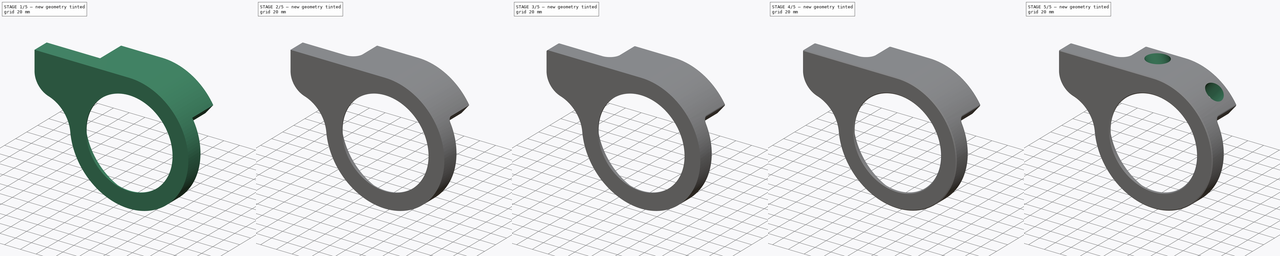
[diagram: build sequence overview — one tinted view per stage of 5, left to right]
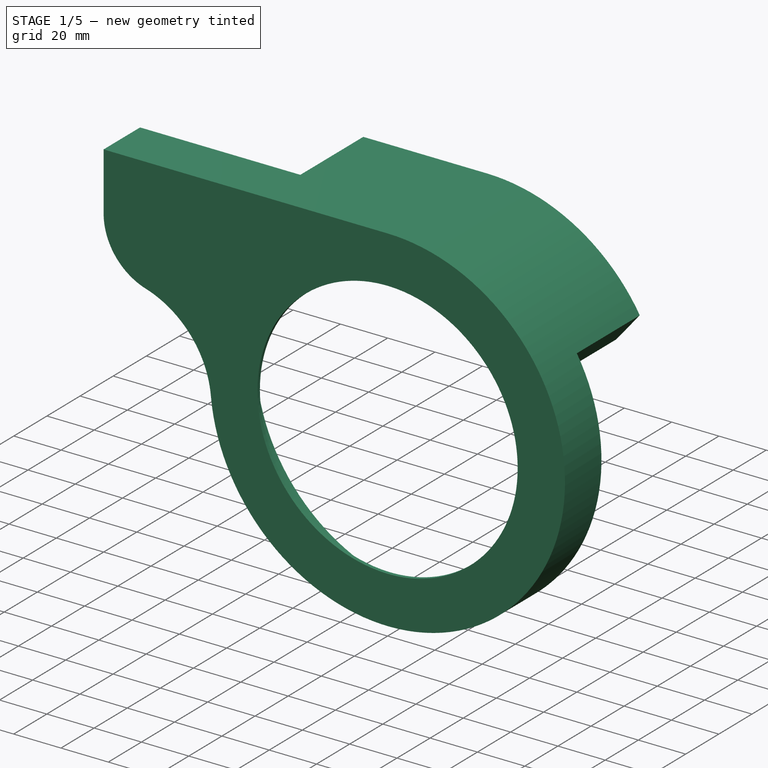
[diagram: stage 1 of 5 — iso view after this stage's code; geometry added in this stage tinted green]
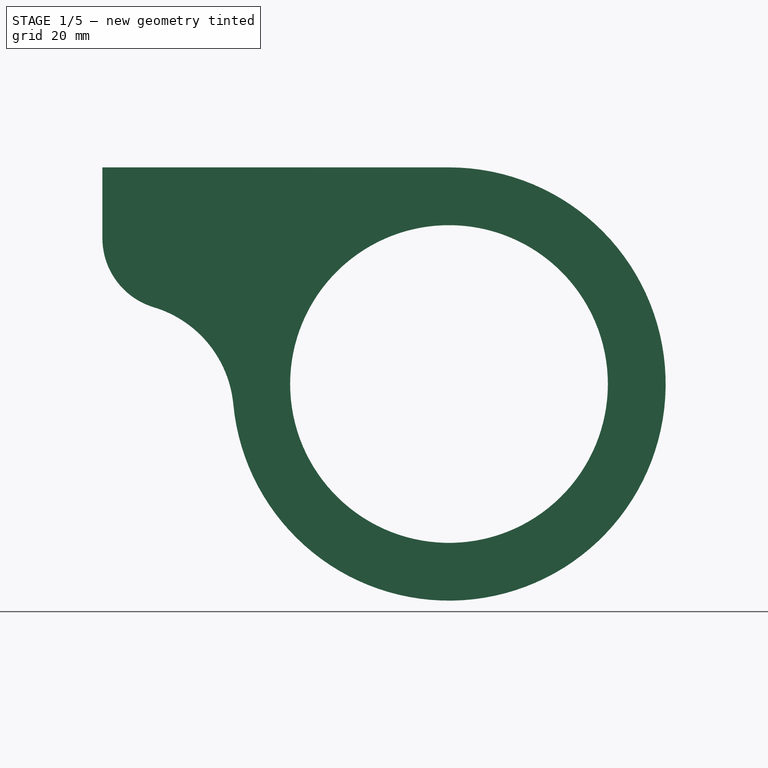
[diagram: stage 1 of 5 — front view after this stage's code; geometry added in this stage tinted green]
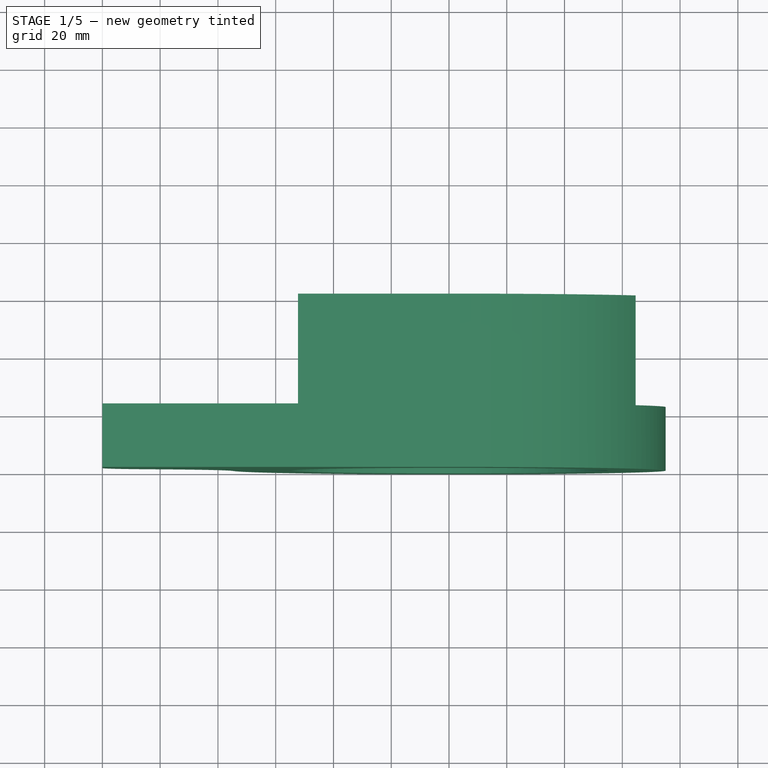
[diagram: stage 1 of 5 — top view after this stage's code; geometry added in this stage tinted green]
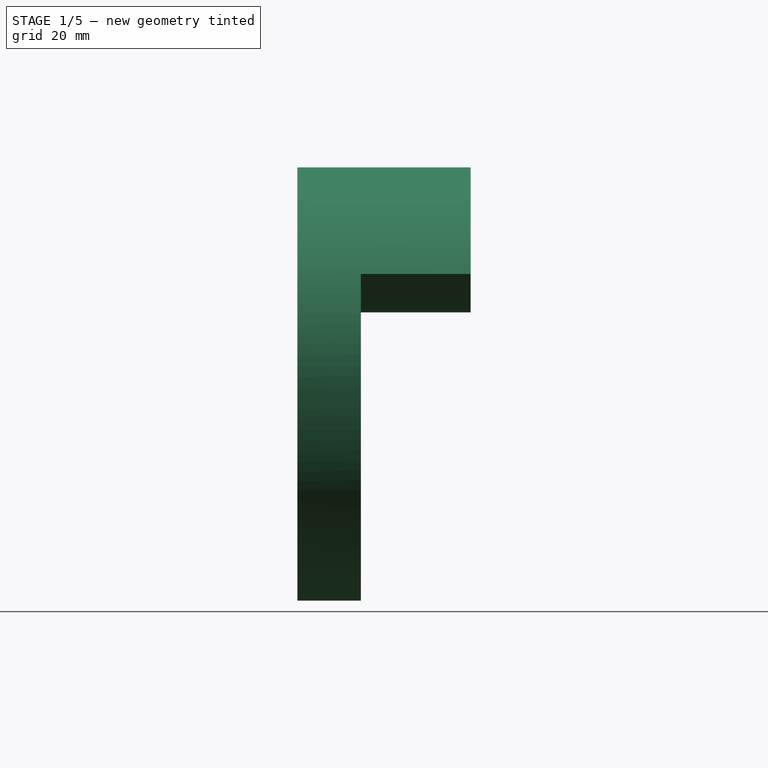
[diagram: stage 1 of 5 — right view after this stage's code; geometry added in this stage tinted green]
FCSTD DOCUMENT  (FreeCAD 0.19R)
Label: BottomWhiteBikeIntegral
License: All rights reserved
LicenseURL: http://en.wikipedia.org/wiki/All_rights_reserved
objects: Sketcher::SketchObject×7, PartDesign::Pocket×6, PartDesign::Fillet×5, PartDesign::Chamfer×4, Part::Cylinder×2, PartDesign::Pad×1, Part::MultiFuse×1, PartDesign::Body×1, Part::Cut×1
note: 44 computed .brp shape members not serialized (recipe doc carries the construction recipe); baked Part::Feature solids carry a one-line shape summary decoded from their .brp

FEATURE [Sketcher::SketchObject] Sketch
  FullyConstrained = false
  MapMode = 5
  Placement = pos=(0,0,0) rot=(1,0,0;1.5708rad)
  Support = -> [XZ_Plane]
  sketch-geometry (11):
    g0: LineSegment StartX=0 StartY=0 StartZ=0 EndX=112.706 EndY=65.0706 EndZ=0
    g1: LineSegment StartX=0 StartY=0 StartZ=0 EndX=7.3e-15 EndY=119.149 EndZ=0
    g2: LineSegment StartX=2.14e-14 StartY=70 StartZ=0 EndX=-199.884 EndY=70 EndZ=0
    g3: Circle CenterX=0 CenterY=0 CenterZ=0 NormalX=0 NormalY=0 NormalZ=1 AngleXU=0 Radius=45
    g4: ArcOfCircle CenterX=0 CenterY=0 CenterZ=0 NormalX=0 NormalY=0 NormalZ=1 AngleXU=0 Radius=70 StartAngle=3.5224 EndAngle=7.85398
    g5: LineSegment StartX=-120 StartY=75 StartZ=0 EndX=2.84e-14 EndY=75 EndZ=0
    g6: ArcOfCircle CenterX=0 CenterY=0 CenterZ=0 NormalX=0 NormalY=0 NormalZ=1 AngleXU=0 Radius=75 StartAngle=3.23571 EndAngle=7.85398
    g7: LineSegment StartX=-120 StartY=75 StartZ=0 EndX=-120 EndY=50.5061 EndZ=0
    g8: ArcOfCircle CenterX=-95 CenterY=50.5061 CenterZ=0 NormalX=0 NormalY=0 NormalZ=1 AngleXU=0 Radius=25 StartAngle=3.14159 EndAngle=4.4201
    g9: Circle CenterX=0 CenterY=0 CenterZ=0 NormalX=0 NormalY=0 NormalZ=1 AngleXU=0 Radius=55
    g10: ArcOfCircle CenterX=-113.419 CenterY=-10.7061 CenterZ=0 NormalX=0 NormalY=0 NormalZ=1 AngleXU=0 Radius=38.9235 StartAngle=0.0941155 EndAngle=1.27851
  constraints (25):
    c: Coincident(g0,g-1)
    c: Coincident(g1,g-1)
    c: Angle(g1) = 1.5708
    c: Angle(g0,g1) = 1.0472
    c: PointOnObject(g2,g1)
    c: Angle(g2) = 3.14159
    c: DistanceY(g2) = 70
    c: Coincident(g3,g-1)
    c: Coincident(g4,g-1)
    c: Diameter(g3) = 90
    c: Coincident(g4,g2)
    c: PointOnObject(g5,g1)
    c: Horizontal(g5)
    c: Coincident(g6,g-1)
    c: Coincident(g6,g5)
    c: Coincident(g5,g7)
    c: Vertical(g7)
    c: Tangent(g8,g7) = -1.5708
    c: Diameter(g6) = 150
    c: Distance(g5) = 120
    c: Diameter(g8) = 50
    c: Coincident(g9,g6)
    c: Diameter(g9) = 110
    c: Tangent(g10,g6) = 1.5708
    c: Tangent(g10,g8) = 1.5708
FEATURE [PartDesign::Pad] Pad
  Direction = (1,1,1)
  Length = 40
  Length2 = 20
  Placement = pos=(0,0,0) rot=(1,0,0;1.5708rad)
  Profile = -> Sketch
  Type = 4
FEATURE [Sketcher::SketchObject] Sketch001
  FullyConstrained = false
  MapMode = 5
  Placement = pos=(0,20,-8.8e-15) rot=(-1,0,0;1.5708rad)
  Support = -> [Pad]
  sketch-geometry (14):
    g0: GeomPoint X=0 Y=0 Z=0
    g1: LineSegment StartX=0 StartY=0 StartZ=0 EndX=101.779 EndY=-121.295 EndZ=0
    g2: LineSegment StartX=54.9288 StartY=-26.5684 StartZ=0 EndX=75.9423 EndY=-51.6114 EndZ=0
    g3: ArcOfCircle CenterX=0 CenterY=0 CenterZ=0 NormalX=0 NormalY=0 NormalZ=1 AngleXU=0 Radius=91.8204 StartAngle=5.68627 EndAngle=9.42478
    g4: LineSegment StartX=-211.759 StartY=-107.924 StartZ=0 EndX=-91.8204 EndY=2.84e-14 EndZ=0
    g5: LineSegment StartX=43.6212 StartY=-30.5051 StartZ=0 EndX=-31.6726 EndY=-44.3314 EndZ=0
    g6: LineSegment StartX=-42.2439 StartY=-45.8964 StartZ=0 EndX=-52.4011 EndY=-75.3951 EndZ=0
    g7: LineSegment StartX=0 StartY=0 StartZ=0 EndX=-69.9978 EndY=-203.289 EndZ=0
    g8: ArcOfCircle CenterX=51.1344 CenterY=-29.7522 CenterZ=0 NormalX=0 NormalY=0 NormalZ=1 AngleXU=0 Radius=4.95311 StartAngle=0.698132 EndAngle=2.38613
    g9: LineSegment StartX=47.5288 StartY=-26.3563 StartZ=0 EndX=43.6212 EndY=-30.5051 EndZ=0
    g10: LineSegment StartX=-52.4011 StartY=-75.3951 StartZ=0 EndX=-16.4761 EndY=-75.3951 EndZ=0
    g11: LineSegment StartX=-16.4761 StartY=-75.3951 StartZ=0 EndX=-30.9733 EndY=-107.924 EndZ=0
    g12: LineSegment StartX=-30.9733 StartY=-107.924 StartZ=0 EndX=-211.759 EndY=-107.924 EndZ=0
    g13: ArcOfCircle CenterX=-35.7204 CenterY=-53.4756 CenterZ=0 NormalX=0 NormalY=0 NormalZ=1 AngleXU=0 Radius=10 StartAngle=1.15406 EndAngle=2.28148
  constraints (24):
    c: Coincident(g1,g-1)
    c: Angle(g1,g-2) = 2.44346
    c: Coincident(g3,g-1)
    c: PointOnObject(g3,g-1)
    c: Coincident(g4,g3)
    c: Distance(g2,g1) = 25
    c: Parallel(g2,g1)
    c: Coincident(g7,g3)
    c: Angle(g7,g1) = 1.02974
    c: Parallel(g7,g6)
    c: Distance(g6,g7) = 25
    c: Tangent(g8,g2) = 1.5708
    c: Tangent(g9,g8) = -1.5708
    c: Coincident(g5,g9)
    c: Horizontal(g10)
    c: Coincident(g11,g10)
    c: Coincident(g12,g11)
    c: Coincident(g12,g4)
    c: Horizontal(g12)
    c: Coincident(g6,g13)
    c: Radius(g13) = 10
    c: Coincident(g13,g5)
    c: Coincident(g2,g3)
    c: Coincident(g10,g6)
FEATURE [PartDesign::Pocket] Pocket  label="FirstPocket-trim"
  BaseFeature = -> Pad
  Length = 38
  Length2 = 100
  Placement = pos=(0,0,0) rot=(1,0,0;1.5708rad)
  Profile = -> Sketch001
  Type = 0
FEATURE [Sketcher::SketchObject] Sketch003
  FullyConstrained = false
  MapMode = 5
  Placement = pos=(0,-18,9.8e-15) rot=(-1,0,0;1.5708rad)
  Support = -> [Pocket]
  sketch-geometry (5):
    g0: ArcOfCircle CenterX=0 CenterY=0 CenterZ=0 NormalX=0 NormalY=0 NormalZ=1 AngleXU=0 Radius=71 StartAngle=4.71239 EndAngle=9.33476
    g1: LineSegment StartX=-114.486 StartY=-47.5911 StartZ=0 EndX=-114.486 EndY=-71 EndZ=0
    g2: LineSegment StartX=-114.486 StartY=-71 StartZ=0 EndX=-1.42e-14 EndY=-71 EndZ=0
    g3: ArcOfCircle CenterX=-114.486 CenterY=10.3335 CenterZ=0 NormalX=0 NormalY=0 NormalZ=1 AngleXU=0 Radius=43.9514 StartAngle=4.985 EndAngle=6.19317
    g4: ArcOfCircle CenterX=-98.2918 CenterY=-47.5911 CenterZ=0 NormalX=0 NormalY=0 NormalZ=1 AngleXU=0 Radius=16.1943 StartAngle=1.84341 EndAngle=3.14159
  constraints (11):
    c: Coincident(g0,g-1)
    c: PointOnObject(g0,g-2)
    c: Diameter(g0) = 142
    c: Vertical(g1)
    c: Coincident(g1,g2)
    c: Coincident(g2,g0)
    c: Horizontal(g2)
    c: Perpendicular(g3,g1)
    c: Tangent(g3,g0) = 1.5708
    c: Tangent(g4,g1) = -1.5708
    c: Tangent(g4,g3) = 1.5708
FEATURE [PartDesign::Pocket] Pocket001  label="2ndPocket-thk"
  BaseFeature = -> Pocket
  Length = 20.5
  Length2 = 0
  Placement = pos=(0,0,0) rot=(1,0,0;1.5708rad)
  Profile = -> Sketch003
  Type = 4
FEATURE [Sketcher::SketchObject] Sketch004
  FullyConstrained = true
  MapMode = 5
  Placement = pos=(0,-38,4.2e-14) rot=(0,0.707107,0.707107;3.14159rad)
  sketch-geometry (2):
    g0: Circle CenterX=0 CenterY=0 CenterZ=0 NormalX=0 NormalY=0 NormalZ=1 AngleXU=0 Radius=67.5
    g1: Circle CenterX=0 CenterY=0 CenterZ=0 NormalX=0 NormalY=0 NormalZ=1 AngleXU=0 Radius=58
  constraints (4):
    c: Coincident(g0,g-1)
    c: Coincident(g1,g0)
    c: Diameter(g1) = 116
    c: Diameter(g0) = 135
FEATURE [PartDesign::Pocket] Pocket002  label="ChainGroove"
  BaseFeature = -> Pocket001
  Length = 0.4
  Length2 = 100
  Placement = pos=(0,0,0) rot=(1,0,0;1.5708rad)
  Profile = -> Sketch004
  Type = 0
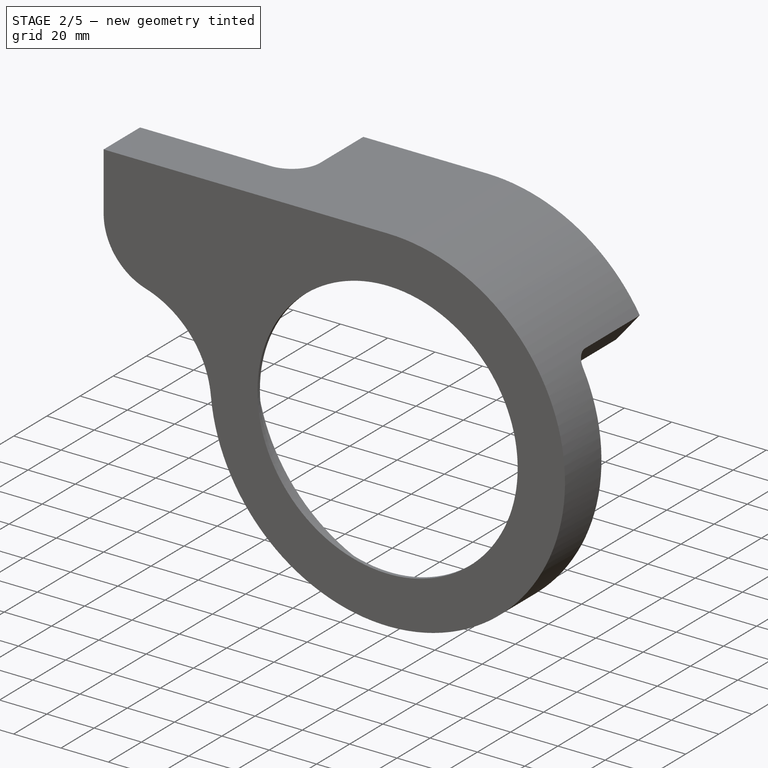
[diagram: stage 2 of 5 — iso view after this stage's code; geometry added in this stage tinted green]
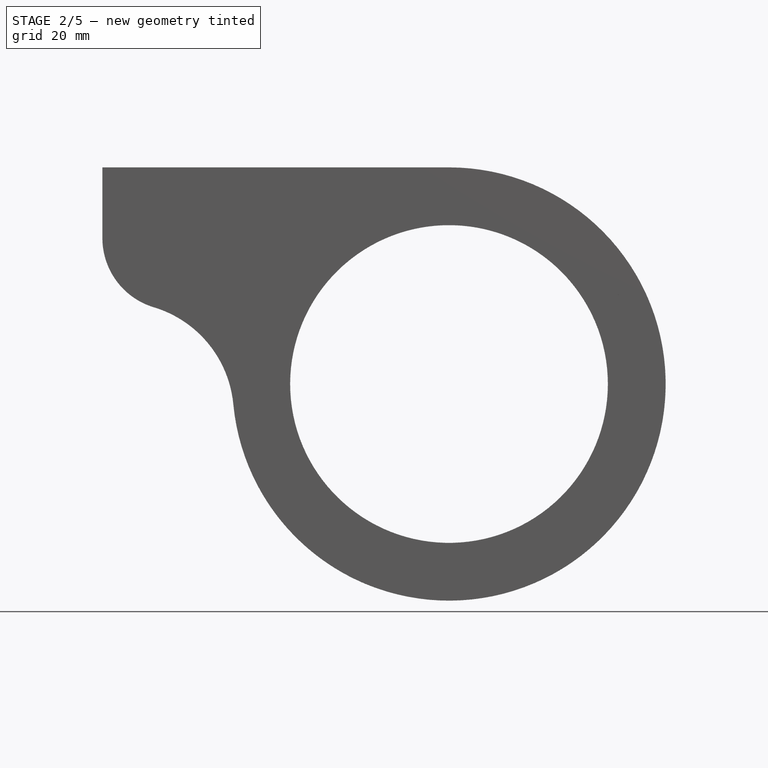
[diagram: stage 2 of 5 — front view after this stage's code; geometry added in this stage tinted green]
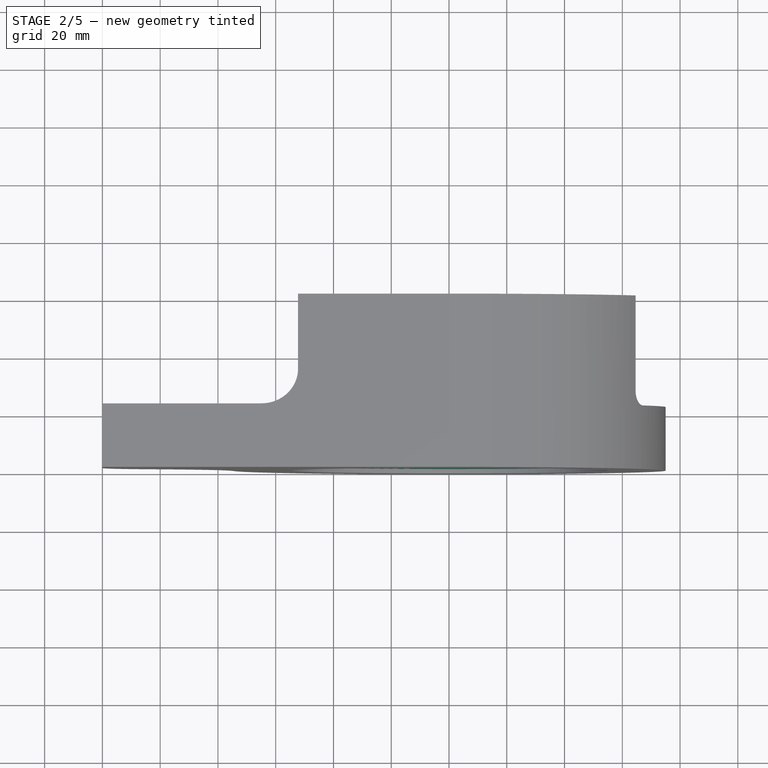
[diagram: stage 2 of 5 — top view after this stage's code; geometry added in this stage tinted green]
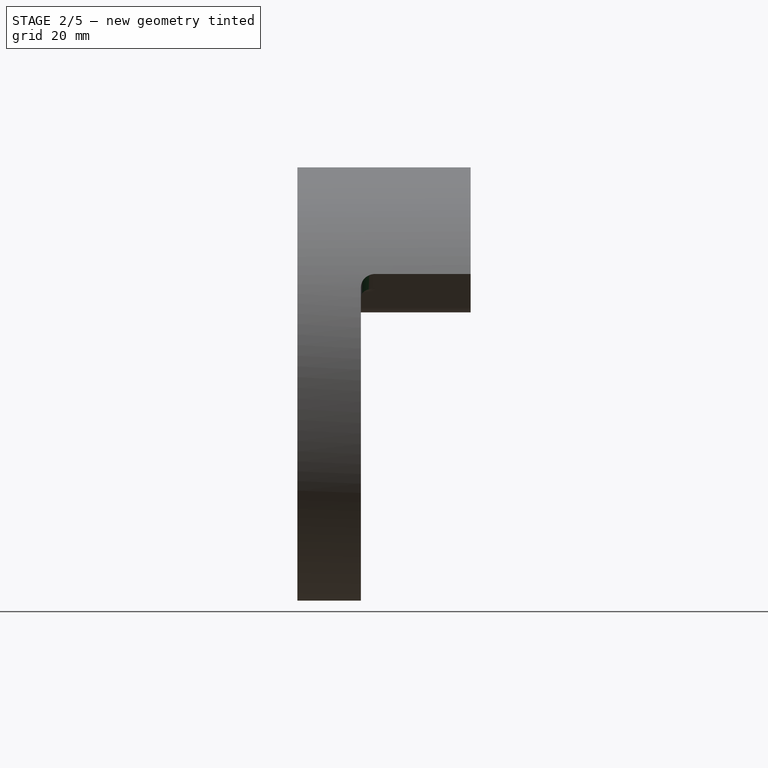
[diagram: stage 2 of 5 — right view after this stage's code; geometry added in this stage tinted green]
FEATURE [Sketcher::SketchObject] Sketch006
  FullyConstrained = false
  MapMode = 5
  Placement = pos=(0,20,-1.77e-14) rot=(-1,0,0;1.5708rad)
  sketch-geometry (4):
    g0: Circle CenterX=-39.8919 CenterY=-60.6956 CenterZ=0 NormalX=0 NormalY=0 NormalZ=1 AngleXU=0 Radius=1.45
    g1: Circle CenterX=0.518637 CenterY=-64.7366 CenterZ=0 NormalX=0 NormalY=0 NormalZ=1 AngleXU=0 Radius=1.45
    g2: Circle CenterX=26.4007 CenterY=-58.9637 CenterZ=0 NormalX=0 NormalY=0 NormalZ=1 AngleXU=0 Radius=1.45
    g3: Circle CenterX=54.207 CenterY=-34.7174 CenterZ=0 NormalX=0 NormalY=0 NormalZ=1 AngleXU=0 Radius=1.45
  constraints (4):
    c: Diameter(g0) = 2.9
    c: Equal(g0,g1)
    c: Equal(g0,g2)
    c: Equal(g0,g3)
FEATURE [Sketcher::SketchObject] Sketch007
  FullyConstrained = false
  MapMode = 5
  Placement = pos=(0,20,-1.99e-14) rot=(-1,0,0;1.5708rad)
  sketch-geometry (4):
    g0: Circle CenterX=-39.9046 CenterY=-60.6617 CenterZ=0 NormalX=0 NormalY=0 NormalZ=1 AngleXU=0 Radius=2
    g1: Circle CenterX=0.50043 CenterY=-64.7556 CenterZ=0 NormalX=0 NormalY=0 NormalZ=1 AngleXU=0 Radius=2
    g2: Circle CenterX=26.3703 CenterY=-58.9325 CenterZ=0 NormalX=0 NormalY=0 NormalZ=1 AngleXU=0 Radius=2
    g3: Circle CenterX=54.2248 CenterY=-34.7424 CenterZ=0 NormalX=0 NormalY=0 NormalZ=1 AngleXU=0 Radius=2
  constraints (4):
    c: Diameter(g0) = 4
    c: Equal(g0,g1)
    c: Equal(g0,g2)
    c: Equal(g0,g3)
FEATURE [Sketcher::SketchObject] Sketch008
  FullyConstrained = false
  MapMode = 5
  Placement = pos=(-120,0,0) rot=(0.707107,0,-0.707107;3.14159rad)
  Support = -> [Pocket001]
  sketch-geometry (10):
    g0: LineSegment StartX=-66.716 StartY=37.5 StartZ=0 EndX=-46.2026 EndY=37.5 EndZ=0
    g1: LineSegment StartX=-46.2026 StartY=37.5 StartZ=0 EndX=-46.2026 EndY=21.5 EndZ=0
    g2: LineSegment StartX=-46.2026 StartY=21.5 StartZ=0 EndX=-69.9987 EndY=21.5 EndZ=0
    g3: LineSegment StartX=-69.9987 StartY=21.5 StartZ=0 EndX=-69.9987 EndY=34.2173 EndZ=0
    g4: LineSegment StartX=68.1181 StartY=37.5 StartZ=0 EndX=34.4148 EndY=37.5 EndZ=0
    g5: LineSegment StartX=34.4148 StartY=37.5 StartZ=0 EndX=34.4148 EndY=21.5 EndZ=0
    g6: LineSegment StartX=34.4148 StartY=21.5 StartZ=0 EndX=69.9278 EndY=21.5 EndZ=0
    g7: LineSegment StartX=69.9278 StartY=21.5 StartZ=0 EndX=69.9278 EndY=35.6903 EndZ=0
    g8: ArcOfCircle CenterX=-66.716 CenterY=34.2173 CenterZ=0 NormalX=0 NormalY=0 NormalZ=1 AngleXU=0 Radius=3.28275 StartAngle=1.5708 EndAngle=3.14159
    g9: ArcOfCircle CenterX=68.1181 CenterY=35.6903 CenterZ=0 NormalX=0 NormalY=0 NormalZ=1 AngleXU=0 Radius=1.80973 StartAngle=-1.15e-14 EndAngle=1.5708
  constraints (22):
    c: Coincident(g0,g1)
    c: Coincident(g1,g2)
    c: Coincident(g2,g3)
    c: Horizontal(g0)
    c: Horizontal(g2)
    c: Vertical(g1)
    c: Vertical(g3)
    c: DistanceY(g0) = 37.5
    c: Coincident(g4,g5)
    c: Coincident(g5,g6)
    c: Coincident(g6,g7)
    c: Horizontal(g4)
    c: Horizontal(g6)
    c: Vertical(g5)
    c: Vertical(g7)
    c: DistanceY(g4,g0) = 0
    c: Distance(g1) = 16
    c: Tangent(g3,g8) = 1.5708
    c: Tangent(g0,g8) = 1.5708
    c: Tangent(g4,g9) = -1.5708
    c: Tangent(g7,g9) = -1.5708
    c: Equal(g5,g1)
FEATURE [PartDesign::Chamfer] Chamfer
  Angle = 45
  Base = -> Pocket002 [Edge39]
  BaseFeature = -> Pocket002
  ChamferType = 0
  FlipDirection = false
  Placement = pos=(0,0,0) rot=(1,0,0;1.5708rad)
  Size = 2
  Size2 = 1
  SupportTransform = false
FEATURE [PartDesign::Pocket] Pocket003
  BaseFeature = -> Chamfer
  Length = 106
  Length2 = 100
  Placement = pos=(0,0,0) rot=(1,0,0;1.5708rad)
  Profile = -> Sketch008
  Type = 0
FEATURE [PartDesign::Fillet] Fillet
  Base = -> Pocket003 [Edge22]
  BaseFeature = -> Pocket003
  Placement = pos=(0,0,0) rot=(1,0,0;1.5708rad)
  Radius = 12
  SupportTransform = false
FEATURE [PartDesign::Fillet] Fillet001
  Base = -> Fillet [Edge17]
  BaseFeature = -> Fillet
  Placement = pos=(0,0,0) rot=(1,0,0;1.5708rad)
  Radius = 5
  SupportTransform = false
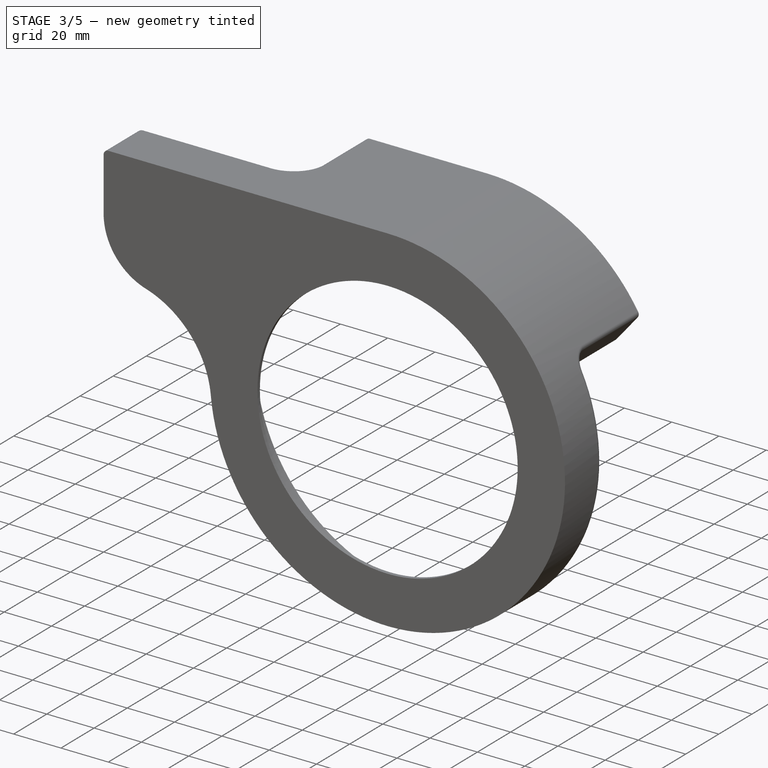
[diagram: stage 3 of 5 — iso view after this stage's code; geometry added in this stage tinted green]
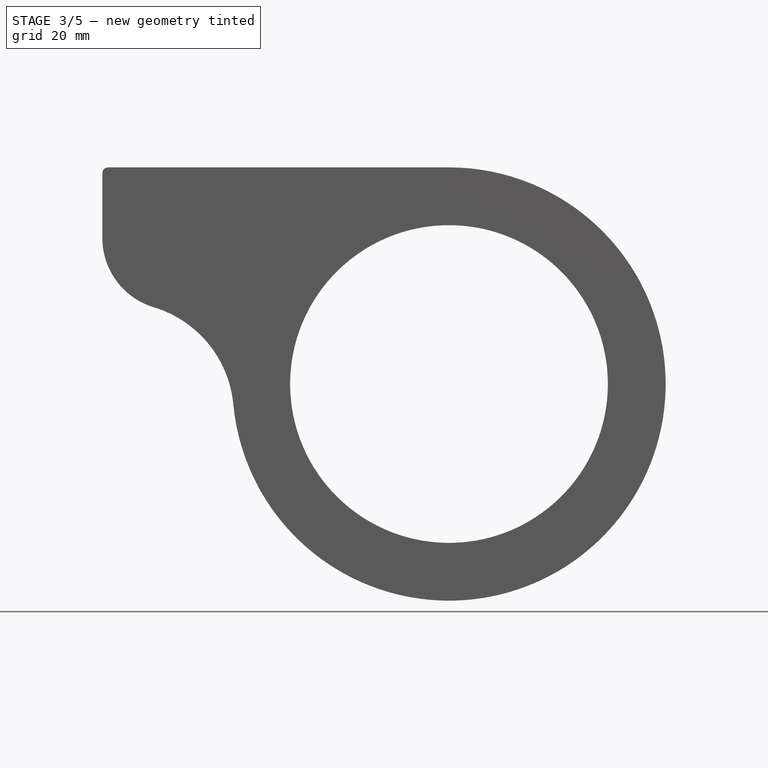
[diagram: stage 3 of 5 — front view after this stage's code; geometry added in this stage tinted green]
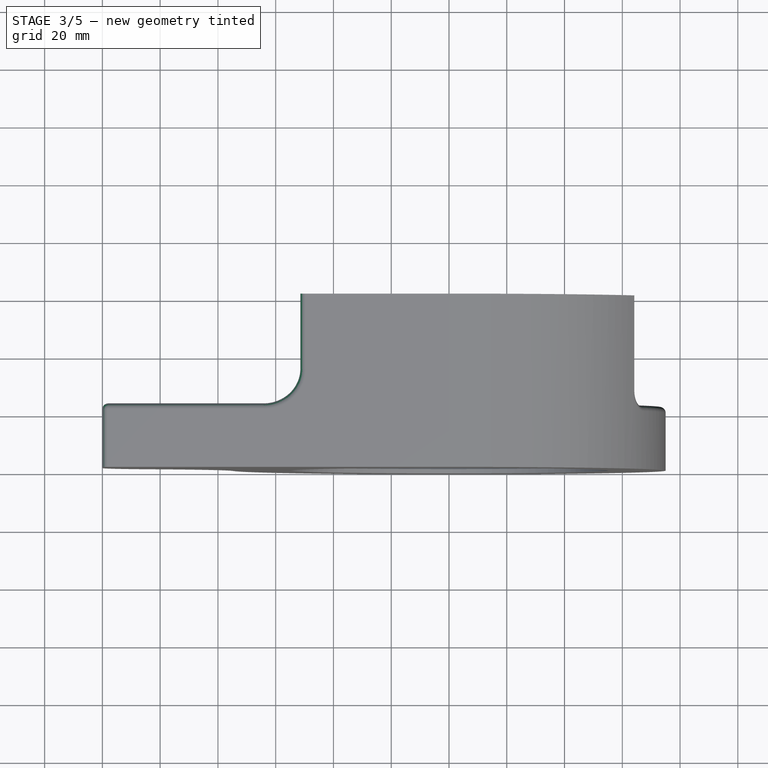
[diagram: stage 3 of 5 — top view after this stage's code; geometry added in this stage tinted green]
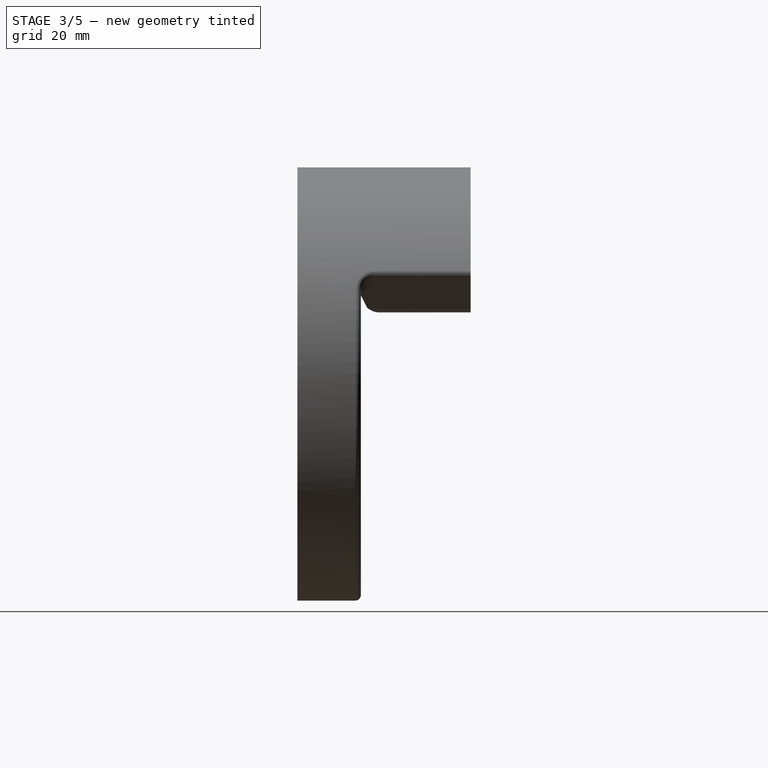
[diagram: stage 3 of 5 — right view after this stage's code; geometry added in this stage tinted green]
FEATURE [PartDesign::Chamfer] Chamfer001
  Angle = 45
  Base = -> Fillet001 [Edge74]
  BaseFeature = -> Fillet001
  ChamferType = 0
  FlipDirection = false
  Placement = pos=(0,0,0) rot=(1,0,0;1.5708rad)
  Size = 8
  Size2 = 1
  SupportTransform = false
FEATURE [PartDesign::Chamfer] Chamfer002
  Angle = 45
  Base = -> Chamfer001 [Edge2]
  BaseFeature = -> Chamfer001
  ChamferType = 0
  FlipDirection = false
  Placement = pos=(0,0,0) rot=(1,0,0;1.5708rad)
  Size = 3
  Size2 = 1
  SupportTransform = false
FEATURE [PartDesign::Fillet] Fillet002
  Base = -> Chamfer002 [Edge34]
  BaseFeature = -> Chamfer002
  Placement = pos=(0,0,0) rot=(1,0,0;1.5708rad)
  Radius = 2
  SupportTransform = false
FEATURE [PartDesign::Fillet] Fillet003
  Base = -> Fillet002 [Edge45]
  BaseFeature = -> Fillet002
  Placement = pos=(0,0,0) rot=(1,0,0;1.5708rad)
  Radius = 2
  SupportTransform = false
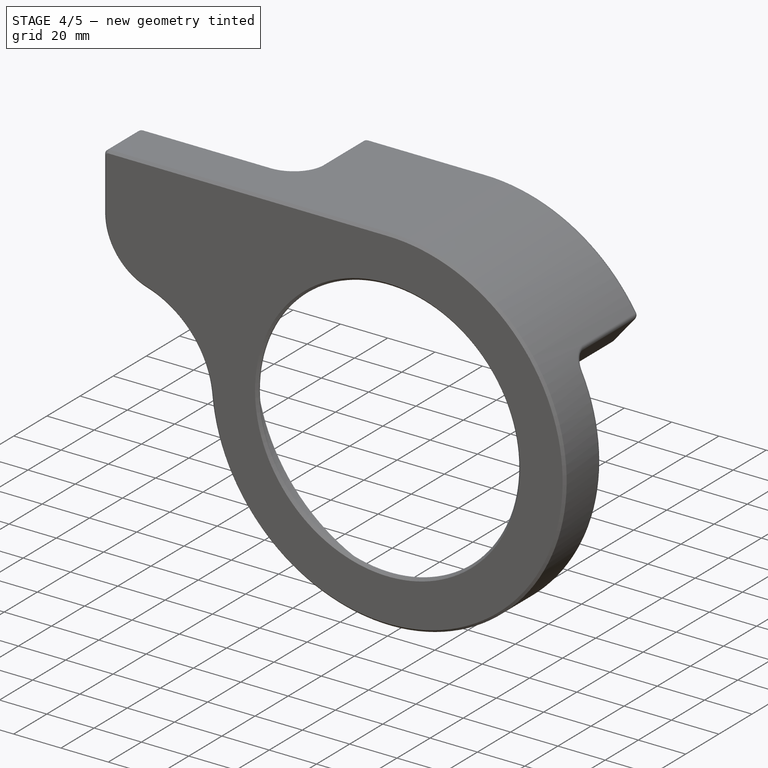
[diagram: stage 4 of 5 — iso view after this stage's code; geometry added in this stage tinted green]
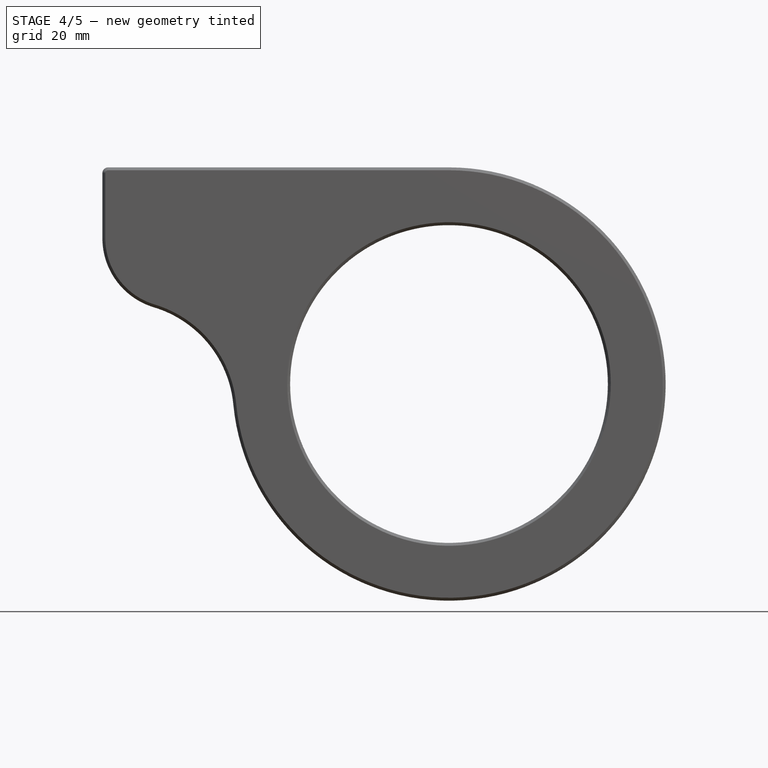
[diagram: stage 4 of 5 — front view after this stage's code; geometry added in this stage tinted green]
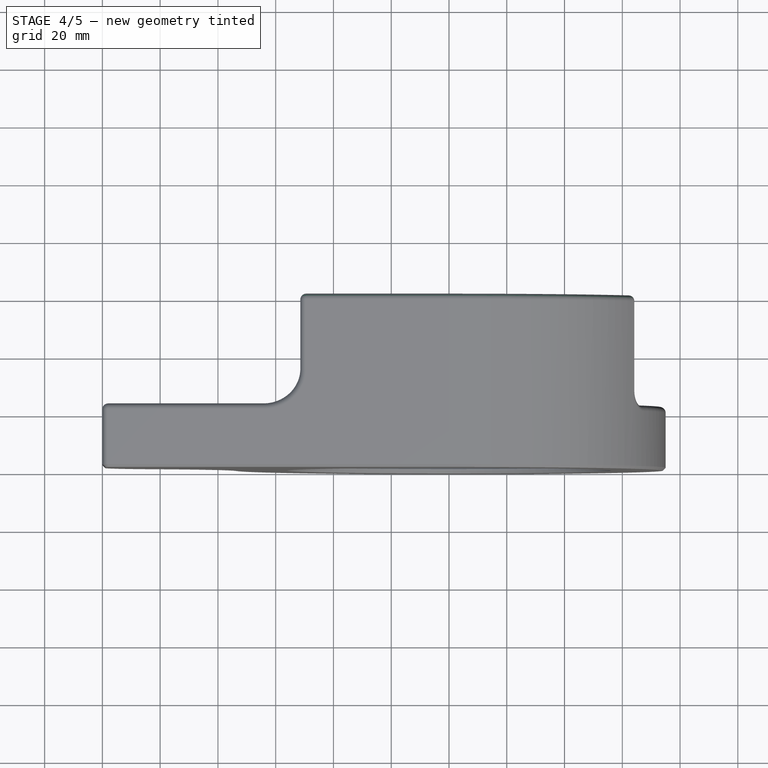
[diagram: stage 4 of 5 — top view after this stage's code; geometry added in this stage tinted green]
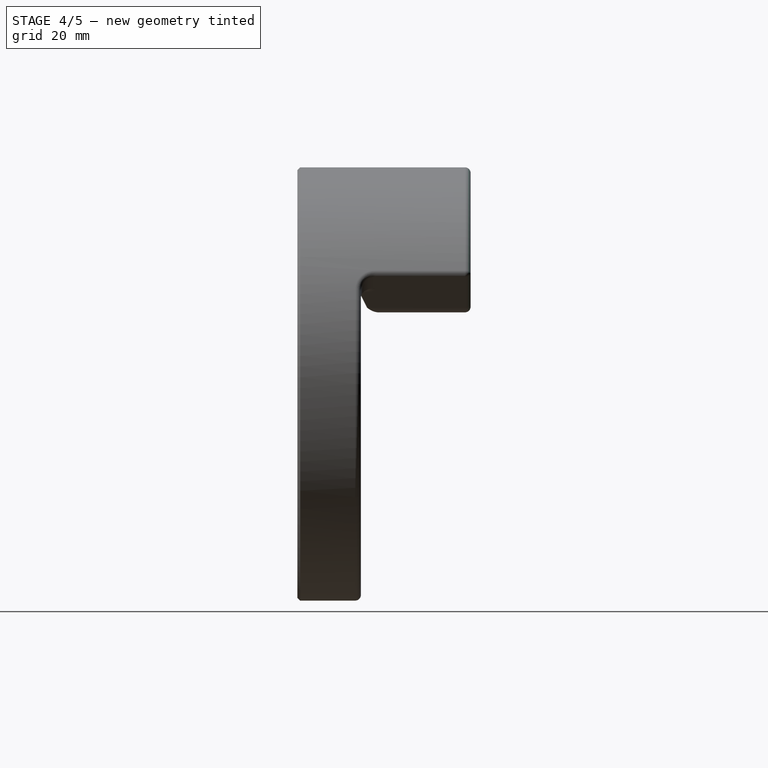
[diagram: stage 4 of 5 — right view after this stage's code; geometry added in this stage tinted green]
FEATURE [PartDesign::Fillet] Fillet004
  Base = -> Fillet003 [Edge4,Edge8]
  BaseFeature = -> Fillet003
  Placement = pos=(0,0,0) rot=(1,0,0;1.5708rad)
  Radius = 2
  SupportTransform = false
FEATURE [PartDesign::Pocket] Pocket004
  BaseFeature = -> Fillet004
  Length = 32
  Length2 = 100
  Placement = pos=(0,0,0) rot=(1,0,0;1.5708rad)
  Profile = -> Sketch006
  Type = 0
FEATURE [PartDesign::Pocket] Pocket005
  BaseFeature = -> Pocket004
  Length = 20
  Length2 = 100
  Placement = pos=(0,0,0) rot=(1,0,0;1.5708rad)
  Profile = -> Sketch007
  Type = 0
FEATURE [PartDesign::Chamfer] Chamfer003
  Angle = 45
  Base = -> Pocket005 [Face33]
  BaseFeature = -> Pocket005
  ChamferType = 0
  FlipDirection = false
  Placement = pos=(0,0,0) rot=(1,0,0;1.5708rad)
  Size = 1
  Size2 = 1
  SupportTransform = false
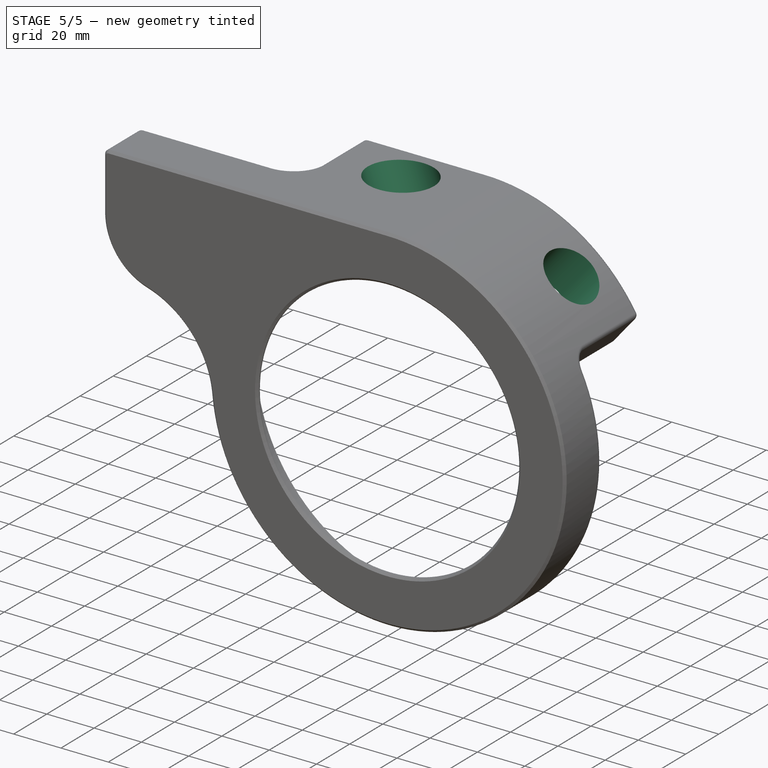
[diagram: stage 5 of 5 — iso view after this stage's code; geometry added in this stage tinted green]
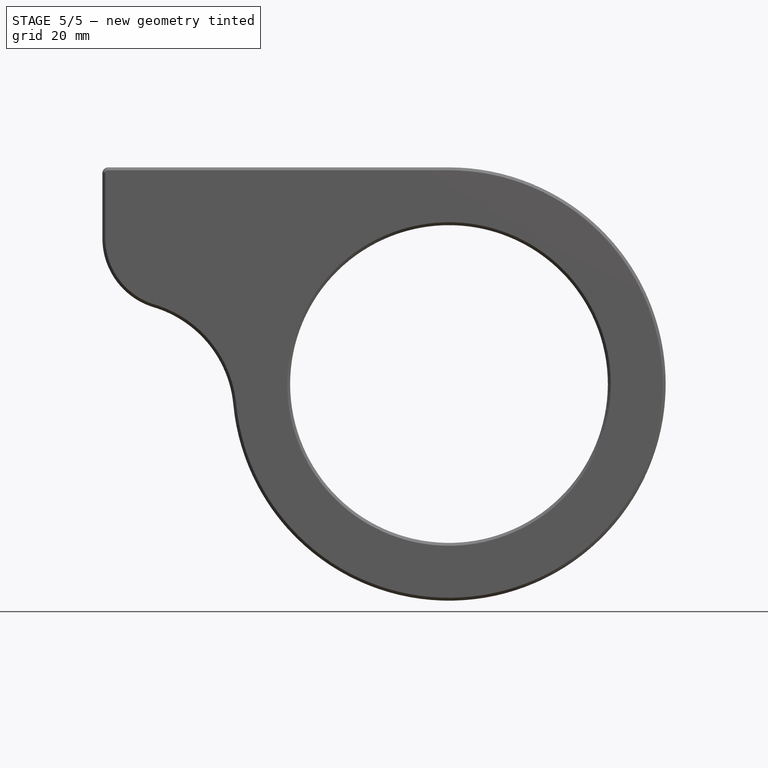
[diagram: stage 5 of 5 — front view after this stage's code; geometry added in this stage tinted green]
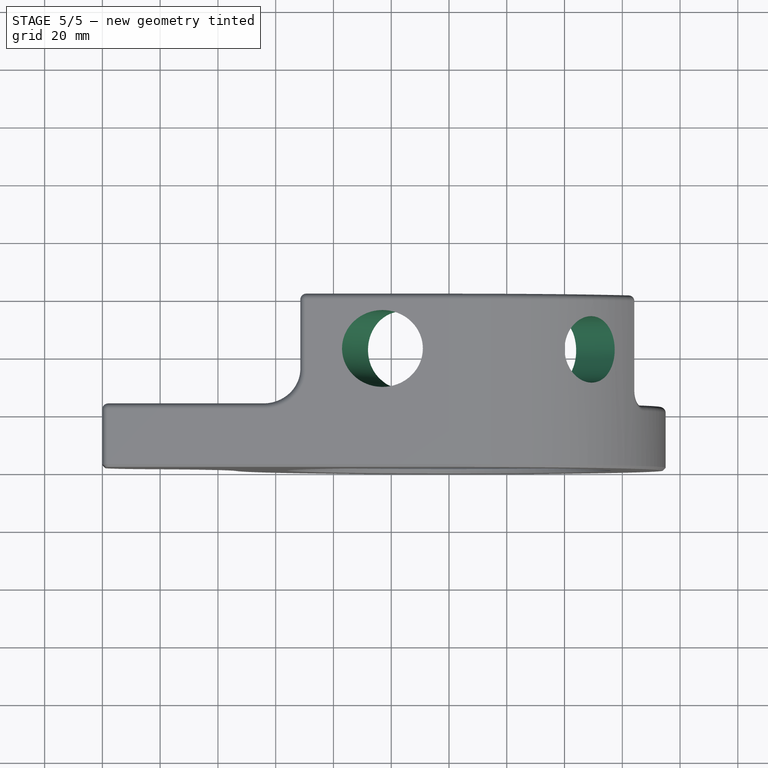
[diagram: stage 5 of 5 — top view after this stage's code; geometry added in this stage tinted green]
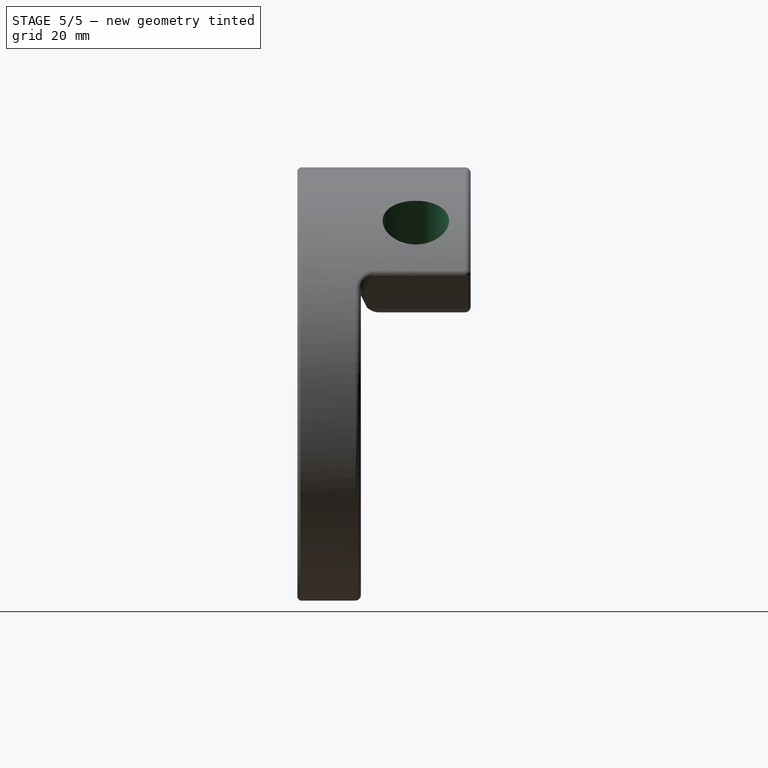
[diagram: stage 5 of 5 — right view after this stage's code; geometry added in this stage tinted green]
FEATURE [Part::Cylinder] Cylinder  label="DT"
  Angle = 360
  AttacherType = Attacher::AttachEngine3D
  Height = 150
  Placement = pos=(1,1,1) rot=(0,1,0;0.715585rad)
  Radius = 11.5
FEATURE [Part::Cylinder] Cylinder001  label="ST"
  Angle = 360
  AttacherType = Attacher::AttachEngine3D
  Height = 150
  Placement = pos=(1,1,1) rot=(0,-1,0;0.314159rad)
  Radius = 13.3
FEATURE [Part::MultiFuse] Fusion
  Shapes = -> [Cylinder,Cylinder001]
FEATURE [PartDesign::Body] Body
  Group = -> [Sketch,Pad,Sketch001,Pocket,Sketch003,Pocket001,Sketch004,Pocket002,Sketch006,Sketch007,Sketch008,Chamfer,Pocket003,Fillet,Fillet001,Chamfer001,Chamfer002,Fillet002,Fillet003,Fillet004,Pocket004,Pocket005,Chamfer003]
  Origin = -> Origin
  Tip = -> Chamfer003
FEATURE [Part::Cut] Cut
  Base = -> Chamfer003
  Tool = -> Fusion
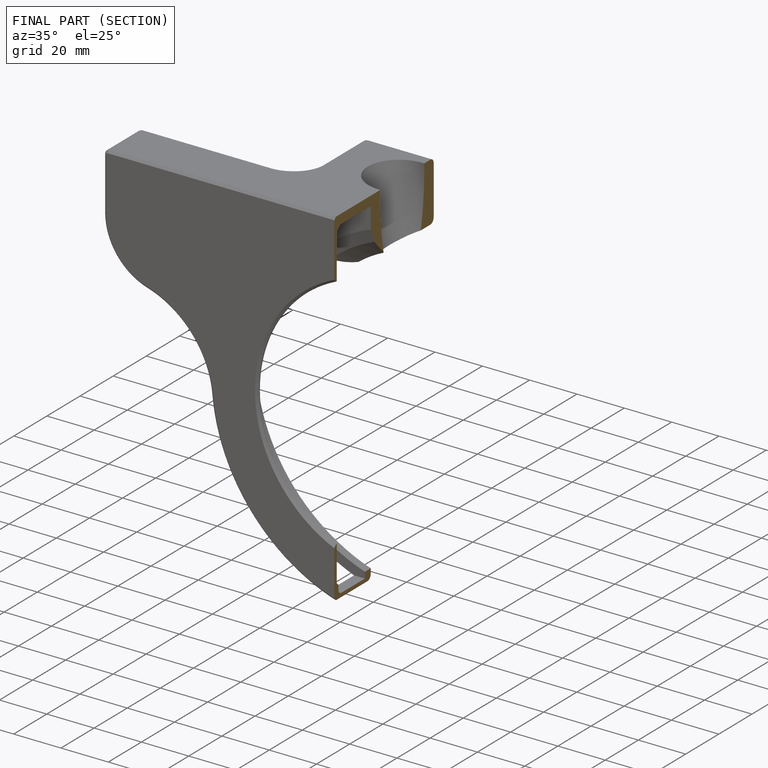
[diagram: finished part — half-section view (interior)]
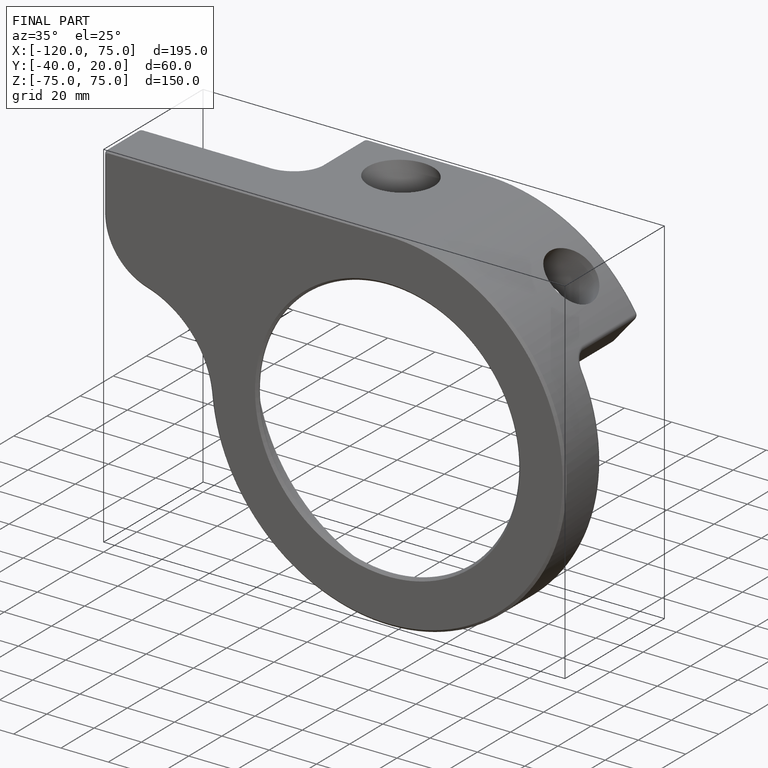
[diagram: finished part — iso view with bounding-box wireframe]
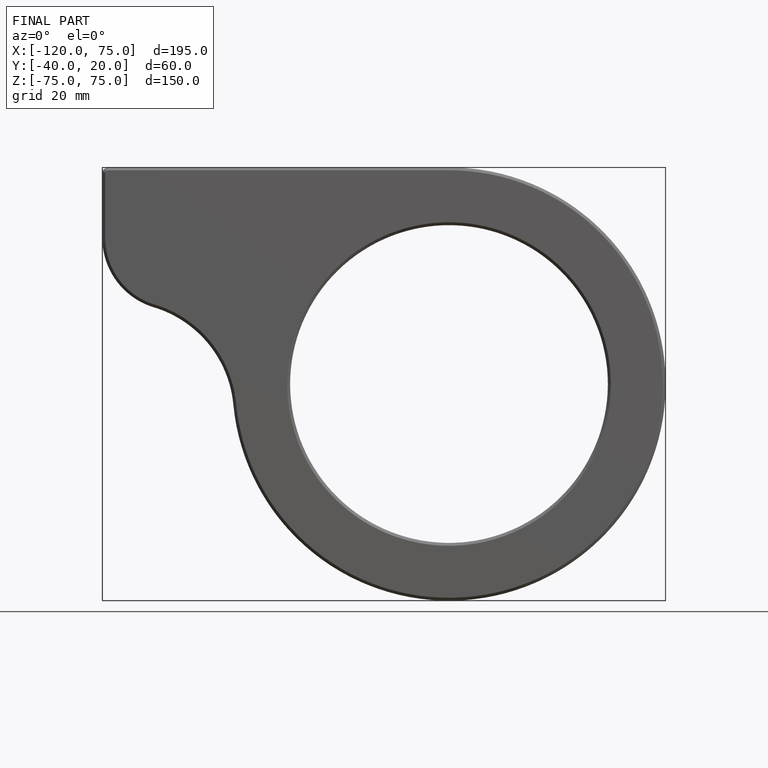
[diagram: finished part — front view with bounding-box wireframe]
